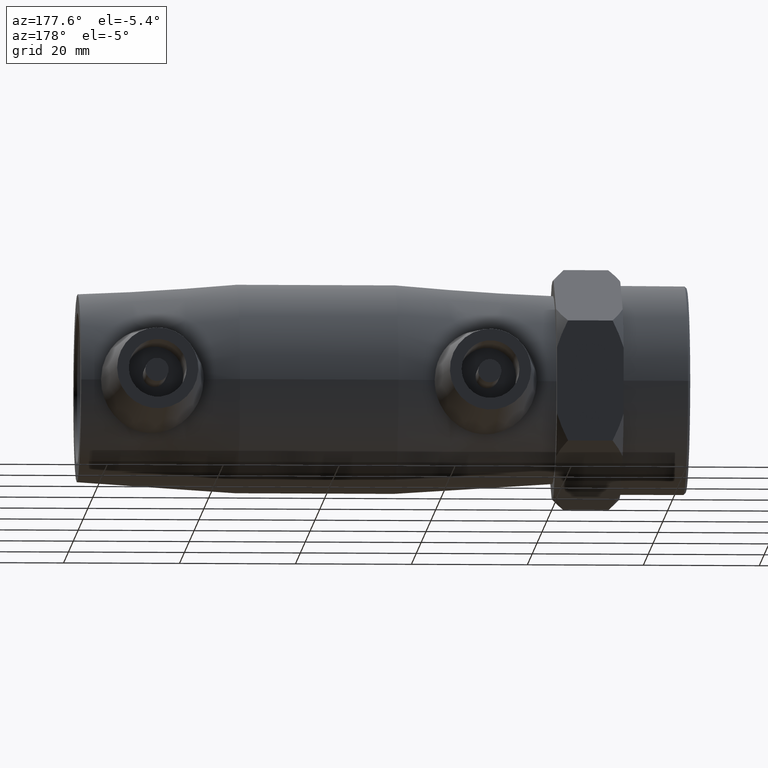
[diagram: clean part render]
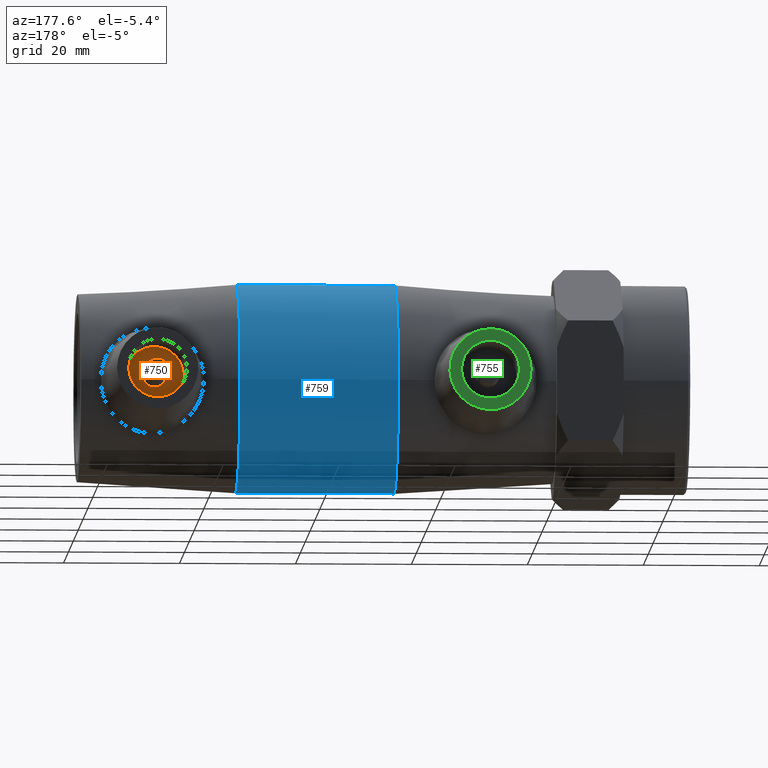
[diagram: same view with three faces highlighted in distinct colors, each labeled with its STEP entity id]
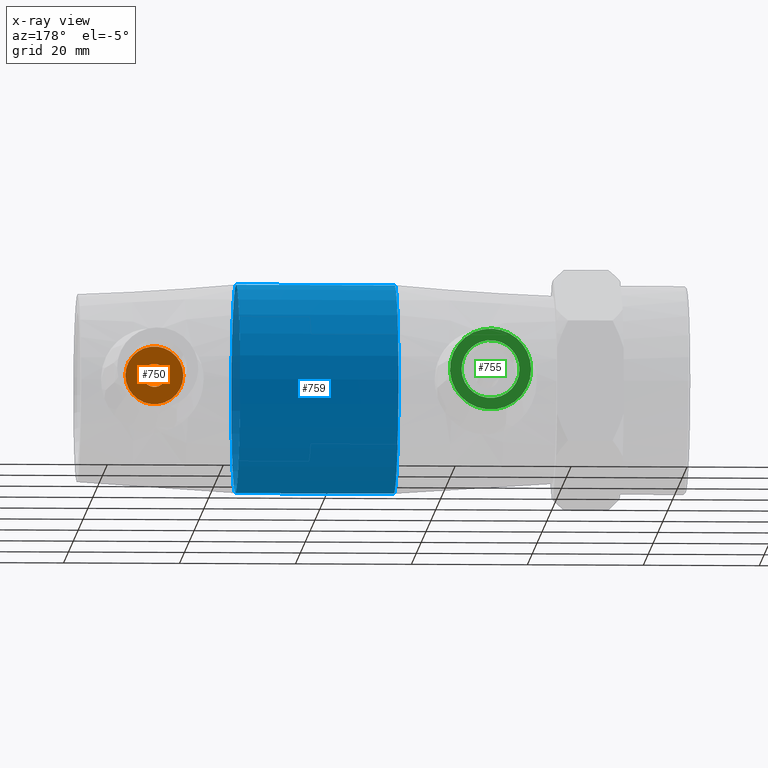
[diagram: x-ray of the same camera — body ghosted, the three highlighted faces saturated]
A machine part, auxiliary view with three faces highlighted in distinct colors.
The next image is the same camera in x-ray (body ghosted, the three faces saturated) — at least one of them is partly hidden behind the body in this view.
Their STEP definitions:

[orange] entity #750 — the highlighted planar face has unit normal (0, -1, 0).
#116=PLANE('',#840);
#136=FACE_BOUND('',#259,.T.);
#191=FACE_OUTER_BOUND('',#258,.T.);
#258=EDGE_LOOP('',(#659));
#259=EDGE_LOOP('',(#660));
#322=CIRCLE('',#836,2.);
#323=CIRCLE('',#838,5.);
#391=VERTEX_POINT('',#1311);
#392=VERTEX_POINT('',#1314);
#486=EDGE_CURVE('',#391,#391,#322,.T.);
#487=EDGE_CURVE('',#392,#392,#323,.T.);
#659=ORIENTED_EDGE('',*,*,#487,.T.);
#660=ORIENTED_EDGE('',*,*,#486,.T.);
#750=ADVANCED_FACE('',(#191,#136),#116,.F.);
#836=AXIS2_PLACEMENT_3D('',#1312,#1029,#1030);
#838=AXIS2_PLACEMENT_3D('',#1315,#1033,#1034);
#840=AXIS2_PLACEMENT_3D('',#1318,#1037,#1038);
#1029=DIRECTION('center_axis',(0.,-1.,0.));
#1030=DIRECTION('ref_axis',(1.,0.,0.));
#1033=DIRECTION('center_axis',(0.,1.,0.));
#1034=DIRECTION('ref_axis',(1.,0.,0.));
#1037=DIRECTION('center_axis',(0.,-1.,0.));
#1038=DIRECTION('ref_axis',(0.,0.,1.));
#1311=CARTESIAN_POINT('',(26.7,24.,-2.44929359829471E-16));
#1312=CARTESIAN_POINT('Origin',(28.7,24.,0.));
#1314=CARTESIAN_POINT('',(23.7,24.,-6.12323399573677E-16));
#1315=CARTESIAN_POINT('Origin',(28.7,24.,0.));
#1318=CARTESIAN_POINT('Origin',(28.7,24.,-9.25185853854297E-17));

[blue] entity #759 — the highlighted cylindrical surface (bore or boss wall) has radius 18 mm, axis along (1, 0, 0).
#97=CYLINDRICAL_SURFACE('',#855,18.);
#144=FACE_BOUND('',#276,.T.);
#200=FACE_OUTER_BOUND('',#275,.T.);
#275=EDGE_LOOP('',(#676));
#276=EDGE_LOOP('',(#677));
#331=CIRCLE('',#856,18.);
#332=CIRCLE('',#857,18.);
#402=VERTEX_POINT('',#1410);
#403=VERTEX_POINT('',#1412);
#497=EDGE_CURVE('',#402,#402,#331,.T.);
#498=EDGE_CURVE('',#403,#403,#332,.T.);
#676=ORIENTED_EDGE('',*,*,#497,.F.);
#677=ORIENTED_EDGE('',*,*,#498,.T.);
#759=ADVANCED_FACE('',(#200,#144),#97,.T.);
#855=AXIS2_PLACEMENT_3D('',#1409,#1067,#1068);
#856=AXIS2_PLACEMENT_3D('',#1411,#1069,#1070);
#857=AXIS2_PLACEMENT_3D('',#1413,#1071,#1072);
#1067=DIRECTION('center_axis',(1.,0.,0.));
#1068=DIRECTION('ref_axis',(0.,1.,0.));
#1069=DIRECTION('center_axis',(1.,0.,0.));
#1070=DIRECTION('ref_axis',(0.,0.,-1.));
#1071=DIRECTION('center_axis',(1.,0.,0.));
#1072=DIRECTION('ref_axis',(0.,0.,-1.));
#1409=CARTESIAN_POINT('Origin',(0.,0.,0.));
#1410=CARTESIAN_POINT('',(13.6666666666667,18.,0.));
#1411=CARTESIAN_POINT('Origin',(13.6666666666667,0.,0.));
#1412=CARTESIAN_POINT('',(-13.6666666666667,18.,0.));
#1413=CARTESIAN_POINT('Origin',(-13.6666666666667,0.,0.));

[green] entity #755 — the highlighted planar face has unit normal (0, 1, 0).
#119=PLANE('',#849);
#140=FACE_BOUND('',#268,.T.);
#196=FACE_OUTER_BOUND('',#267,.T.);
#267=EDGE_LOOP('',(#668));
#268=EDGE_LOOP('',(#669));
#328=CIRCLE('',#847,5.);
#329=CIRCLE('',#850,7.);
#397=VERTEX_POINT('',#1328);
#398=VERTEX_POINT('',#1332);
#492=EDGE_CURVE('',#397,#397,#328,.T.);
#493=EDGE_CURVE('',#398,#398,#329,.T.);
#668=ORIENTED_EDGE('',*,*,#493,.F.);
#669=ORIENTED_EDGE('',*,*,#492,.T.);
#755=ADVANCED_FACE('',(#196,#140),#119,.T.);
#847=AXIS2_PLACEMENT_3D('',#1329,#1051,#1052);
#849=AXIS2_PLACEMENT_3D('',#1331,#1055,#1056);
#850=AXIS2_PLACEMENT_3D('',#1333,#1057,#1058);
#1051=DIRECTION('center_axis',(0.,-1.,0.));
#1052=DIRECTION('ref_axis',(-1.,0.,0.));
#1055=DIRECTION('center_axis',(0.,1.,0.));
#1056=DIRECTION('ref_axis',(0.,0.,1.));
#1057=DIRECTION('center_axis',(0.,-1.,0.));
#1058=DIRECTION('ref_axis',(1.,0.,0.));
#1328=CARTESIAN_POINT('',(-23.7,38.,-6.12323399573677E-16));
#1329=CARTESIAN_POINT('Origin',(-28.7,38.,0.));
#1331=CARTESIAN_POINT('Origin',(-28.7,38.,1.32169407693471E-16));
#1332=CARTESIAN_POINT('',(-35.7,38.,8.57252759403147E-16));
#1333=CARTESIAN_POINT('Origin',(-28.7,38.,0.));